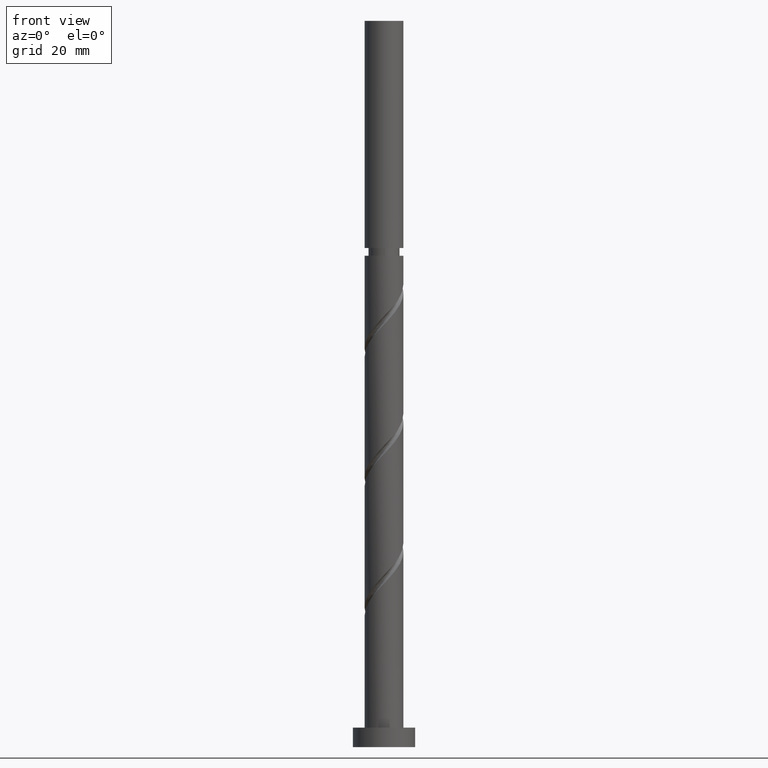
[diagram: clean part render]
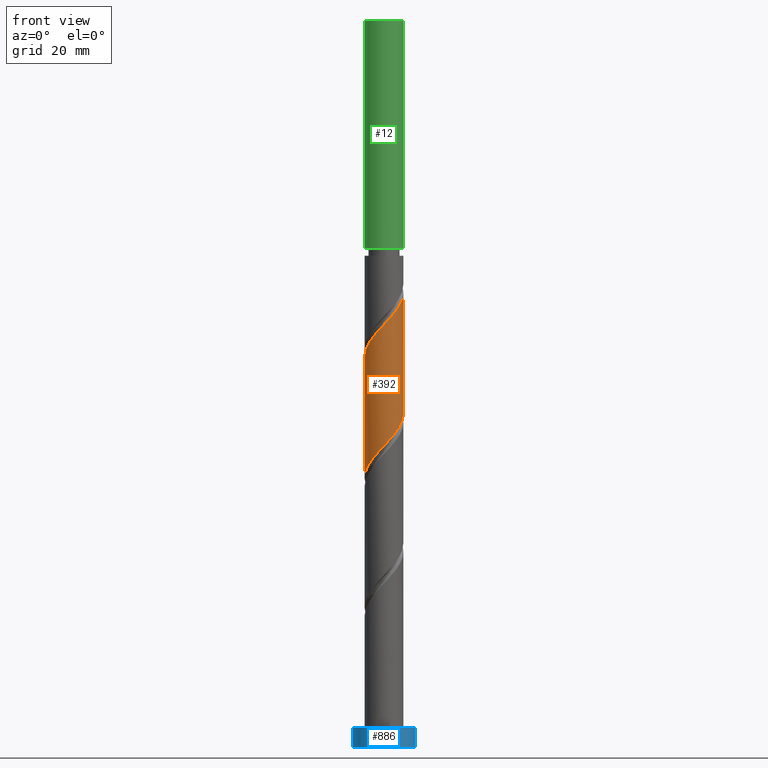
[diagram: same view with three faces highlighted in distinct colors, each labeled with its STEP entity id]
A machine part, front view with three faces highlighted in distinct colors.
Their STEP definitions:

[orange] entity #392 — the highlighted cylindrical surface (edge-blend (fillet) strip) has radius 5 mm, axis along (-0, -0, -1).
#2 = ORIENTED_EDGE ( 'NONE', *, *, #1594, .F. ) ;
#22 = CARTESIAN_POINT ( 'NONE',  ( -4.999999999999998224, 5.787114579681064564E-15, 69.26158959534315329 ) ) ;
#31 = DIRECTION ( 'NONE',  ( -0.000000000000000000, -0.000000000000000000, -1.000000000000000000 ) ) ;
#41 = CARTESIAN_POINT ( 'NONE',  ( 4.769007418836825885, -1.640084675284864346, 84.17024516235528608 ) ) ;
#55 = CARTESIAN_POINT ( 'NONE',  ( -5.000000000000007994, -1.420609522143917172E-15, 100.4677896182563188 ) ) ;
#59 = CARTESIAN_POINT ( 'NONE',  ( -4.741018197097059073, -1.588315603019292865, 70.97580071791085743 ) ) ;
#73 = CARTESIAN_POINT ( 'NONE',  ( -0.3071292586678989744, -4.990558247177381723, 108.4758007179108432 ) ) ;
#92 = CARTESIAN_POINT ( 'NONE',  ( -4.182022282074166597, -2.818510091388756411, 103.6146896067997432 ) ) ;
#164 = CARTESIAN_POINT ( 'NONE',  ( 4.475514850455490468, -2.229297383336810157, 83.47580071791084322 ) ) ;
#216 = CARTESIAN_POINT ( 'NONE',  ( 3.311684396980709266, -3.746030759990445880, 112.6424673845774720 ) ) ;
#240 = CYLINDRICAL_SURFACE ( 'NONE', #789, 5.000000000000000000 ) ;
#285 =( BOUNDED_CURVE ( )  B_SPLINE_CURVE ( 2, ( #463, #1269, #869, #41, #164, #832, #1253, #1240, #579, #438, #446, #1643, #432, #1499, #298, #1246, #852, #1392, #1155, #901, #1672, #1436, #59, #357, #513, #1709, #1418 ),
 .UNSPECIFIED., .F., .T. ) 
 B_SPLINE_CURVE_WITH_KNOTS ( ( 3, 2, 2, 2, 2, 2, 2, 2, 2, 2, 2, 2, 2, 3 ),
 ( 0.5545317669814462391, 0.5625000000000000000, 0.5729166666666666297, 0.5833333333333333703, 0.5937500000000000000, 0.6041666666666666297, 0.6145833333333333703, 0.6250000000000000000, 0.6354166666666666297, 0.6458333333333333703, 0.6562500000000000000, 0.6666666666666666297, 0.6770833333333333703, 0.6795317669814463502 ),
 .UNSPECIFIED. ) 
 CURVE ( )  GEOMETRIC_REPRESENTATION_ITEM ( )  RATIONAL_B_SPLINE_CURVE ( ( 0.9062941362546301782, 0.9031415850403343715, 0.9090909090909098378, 0.9013135103398283166, 0.9090909090909098378, 0.9013135103398283166, 0.9090909090909098378, 0.9013135103398283166, 0.9090909090909098378, 0.9013135103398283166, 0.9090909090909098378, 0.9013135103398283166, 0.9090909090909098378, 0.9013135103398283166, 0.9090909090909098378, 0.9013135103398283166, 0.9090909090909098378, 0.9013135103398283166, 0.9090909090909098378, 0.9013135103398283166, 0.9090909090909098378, 0.9013135103398283166, 0.9090909090909098378, 0.9013135103398283166, 0.9090909090909098378, 0.9072628343904035608, 0.9062941362546301782 ) ) 
 REPRESENTATION_ITEM ( '' )  );
#298 = CARTESIAN_POINT ( 'NONE',  ( -0.9949874371066216305, -4.899999999999997691, 76.53135627346641456 ) ) ;
#340 = VERTEX_POINT ( 'NONE', #55 ) ;
#346 = CARTESIAN_POINT ( 'NONE',  ( -5.000000000000007994, -1.420609522143917172E-15, 100.4677896182563188 ) ) ;
#354 = CARTESIAN_POINT ( 'NONE',  ( 1.640084675284861682, -4.769007418836840984, 110.5591340512441860 ) ) ;
#357 = CARTESIAN_POINT ( 'NONE',  ( -4.950123913191580627, -0.9641487162641722009, 70.28135627346640035 ) ) ;
#361 = CARTESIAN_POINT ( 'NONE',  ( 4.990558247177382611, -0.3071292586679017500, 116.8091340512441434 ) ) ;
#381 = CARTESIAN_POINT ( 'NONE',  ( -2.212482489774421079, -4.531912481002546400, 106.3924673845775430 ) ) ;
#392 = ADVANCED_FACE ( 'NONE', ( #1575 ), #240, .T. ) ;
#432 = CARTESIAN_POINT ( 'NONE',  ( 0.3071292586678939784, -4.990558247177372841, 77.92024516235530029 ) ) ;
#438 = CARTESIAN_POINT ( 'NONE',  ( 2.212482489774412642, -4.531912481002538406, 80.00357849568861468 ) ) ;
#446 = CARTESIAN_POINT ( 'NONE',  ( 1.588315603019292865, -4.741018197097059073, 79.30913405124418603 ) ) ;
#459 = EDGE_LOOP ( 'NONE', ( #1373, #1745, #1122, #2 ) ) ;
#463 = CARTESIAN_POINT ( 'NONE',  ( 4.999999999999999112, 6.968463550727070010E-15, 85.92825626200981048 ) ) ;
#496 = CARTESIAN_POINT ( 'NONE',  ( 4.950123913191589509, -0.9641487162641798614, 116.1146896067997432 ) ) ;
#513 = CARTESIAN_POINT ( 'NONE',  ( -4.990558247177372841, -0.3071292586678953662, 69.58691182902198591 ) ) ;
#579 = CARTESIAN_POINT ( 'NONE',  ( 2.761260863840563573, -4.168385591787598266, 80.69802294013305755 ) ) ;
#621 = CARTESIAN_POINT ( 'NONE',  ( -1.588315603019300193, -4.741018197097065290, 107.0869118290219433 ) ) ;
#625 = EDGE_CURVE ( 'NONE', #1424, #1001, #1490, .T. ) ;
#630 = CARTESIAN_POINT ( 'NONE',  ( 3.804858702572662121, -3.310039237906727827, 113.3369118290219717 ) ) ;
#640 = CARTESIAN_POINT ( 'NONE',  ( 5.000000000000009770, -1.869223055452522833E-15, 117.1344562849230044 ) ) ;
#732 = VECTOR ( 'NONE', #31, 1000.000000000000000 ) ;
#752 = CARTESIAN_POINT ( 'NONE',  ( -3.310039237906727827, -3.804858702572662121, 105.0035784956886289 ) ) ;
#762 = CARTESIAN_POINT ( 'NONE',  ( 4.168385591787601818, -2.761260863840574231, 114.0313562734663719 ) ) ;
#789 = AXIS2_PLACEMENT_3D ( 'NONE', #1311, #1061, #1703 ) ;
#795 = CARTESIAN_POINT ( 'NONE',  ( 5.000000000000000000, 6.123233995736766282E-16, 187.0000000000000000 ) ) ;
#832 = CARTESIAN_POINT ( 'NONE',  ( 4.182022282074153274, -2.818510091388755079, 82.78135627346638614 ) ) ;
#852 = CARTESIAN_POINT ( 'NONE',  ( -2.229297383336808380, -4.475514850455492244, 75.14246738457750041 ) ) ;
#869 = CARTESIAN_POINT ( 'NONE',  ( 4.899999999999997691, -0.9949874371066218526, 84.86468960679972895 ) ) ;
#893 = CARTESIAN_POINT ( 'NONE',  ( 2.229297383336807936, -4.475514850455503790, 111.2535784956886431 ) ) ;
#901 = CARTESIAN_POINT ( 'NONE',  ( -3.804858702572657680, -3.310039237906718057, 73.05913405124417181 ) ) ;
#907 = CARTESIAN_POINT ( 'NONE',  ( 5.000000000000008882, -0.1537097582883641400, 116.9712925968947843 ) ) ;
#1001 = VERTEX_POINT ( 'NONE', #1526 ) ;
#1036 = CARTESIAN_POINT ( 'NONE',  ( -2.761260863840572899, -4.168385591787603595, 105.6980229401330575 ) ) ;
#1048 = CARTESIAN_POINT ( 'NONE',  ( -3.746030759990445436, -3.311684396980708822, 104.3091340512441576 ) ) ;
#1058 = CARTESIAN_POINT ( 'NONE',  ( -5.000000000000009770, -0.5025189076296000534, 101.0012159874456046 ) ) ;
#1061 = DIRECTION ( 'NONE',  ( -0.000000000000000000, -0.000000000000000000, -1.000000000000000000 ) ) ;
#1122 = ORIENTED_EDGE ( 'NONE', *, *, #1291, .T. ) ;
#1155 = CARTESIAN_POINT ( 'NONE',  ( -3.311684396980706158, -3.746030759990437442, 73.75357849568862889 ) ) ;
#1165 = CARTESIAN_POINT ( 'NONE',  ( 0.3498901989283792480, -5.030992581163177491, 109.1702451623553287 ) ) ;
#1172 = EDGE_CURVE ( 'NONE', #340, #1424, #1564, .T. ) ;
#1173 = CARTESIAN_POINT ( 'NONE',  ( 4.741018197097066178, -1.588315603019300415, 115.4202451623552577 ) ) ;
#1240 = CARTESIAN_POINT ( 'NONE',  ( 3.310039237906717613, -3.804858702572657680, 81.39246738457748620 ) ) ;
#1246 = CARTESIAN_POINT ( 'NONE',  ( -1.640084675284862126, -4.769007418836828549, 75.83691182902192907 ) ) ;
#1253 = CARTESIAN_POINT ( 'NONE',  ( 3.746030759990437442, -3.311684396980706602, 82.08691182902195749 ) ) ;
#1269 = CARTESIAN_POINT ( 'NONE',  ( 4.999999999999999112, -0.5025189076296037172, 85.39482989282055314 ) ) ;
#1288 = CARTESIAN_POINT ( 'NONE',  ( -0.9641487162641770858, -4.950123913191589509, 107.7813562734664288 ) ) ;
#1291 = EDGE_CURVE ( 'NONE', #340, #1557, #1487, .T. ) ;
#1299 = CARTESIAN_POINT ( 'NONE',  ( 4.531912481002545512, -2.212482489774421079, 114.7258007179108432 ) ) ;
#1309 = CARTESIAN_POINT ( 'NONE',  ( -4.475514850455501126, -2.229297383336809268, 102.9202451623552861 ) ) ;
#1311 = CARTESIAN_POINT ( 'NONE',  ( 0.000000000000000000, 0.000000000000000000, 187.0000000000000000 ) ) ;
#1353 = CARTESIAN_POINT ( 'NONE',  ( -5.000000000000000000, 0.000000000000000000, 187.0000000000000000 ) ) ;
#1373 = ORIENTED_EDGE ( 'NONE', *, *, #625, .F. ) ;
#1377 = CARTESIAN_POINT ( 'NONE',  ( 5.000000000000009770, -1.869223055452522833E-15, 117.1344562849230044 ) ) ;
#1392 = CARTESIAN_POINT ( 'NONE',  ( -2.818510091388753303, -4.182022282074155939, 74.44802294013305755 ) ) ;
#1418 = CARTESIAN_POINT ( 'NONE',  ( -4.999999999999998224, 5.787114579681064564E-15, 69.26158959534315329 ) ) ;
#1421 = CARTESIAN_POINT ( 'NONE',  ( -4.769007418836840984, -1.640084675284861904, 102.2258007179108432 ) ) ;
#1424 = VERTEX_POINT ( 'NONE', #1377 ) ;
#1428 = CARTESIAN_POINT ( 'NONE',  ( 2.818510091388755079, -4.182022282074167485, 111.9480229401330860 ) ) ;
#1436 = CARTESIAN_POINT ( 'NONE',  ( -4.531912481002538406, -2.212482489774412642, 71.67024516235527187 ) ) ;
#1487 = LINE ( 'NONE', #1353, #1539 ) ;
#1490 = LINE ( 'NONE', #795, #732 ) ;
#1499 = CARTESIAN_POINT ( 'NONE',  ( -0.3498901989283830782, -5.030992581163167721, 77.22580071791085743 ) ) ;
#1526 = CARTESIAN_POINT ( 'NONE',  ( 4.999999999999999112, 6.968463550727070010E-15, 85.92825626200981048 ) ) ;
#1539 = VECTOR ( 'NONE', #1750, 1000.000000000000000 ) ;
#1557 = VERTEX_POINT ( 'NONE', #22 ) ;
#1564 =( BOUNDED_CURVE ( )  B_SPLINE_CURVE ( 2, ( #346, #1058, #1565, #1421, #1309, #92, #1048, #752, #1036, #381, #621, #1288, #73, #1165, #1686, #354, #893, #1428, #216, #630, #762, #1299, #1173, #496, #361, #907, #640 ),
 .UNSPECIFIED., .F., .T. ) 
 B_SPLINE_CURVE_WITH_KNOTS ( ( 3, 2, 2, 2, 2, 2, 2, 2, 2, 2, 2, 2, 2, 3 ),
 ( 0.5545317669814461281, 0.5625000000000000000, 0.5729166666666667407, 0.5833333333333332593, 0.5937500000000000000, 0.6041666666666667407, 0.6145833333333332593, 0.6250000000000000000, 0.6354166666666667407, 0.6458333333333332593, 0.6562500000000000000, 0.6666666666666667407, 0.6770833333333332593, 0.6795317669814463502 ),
 .UNSPECIFIED. ) 
 CURVE ( )  GEOMETRIC_REPRESENTATION_ITEM ( )  RATIONAL_B_SPLINE_CURVE ( ( 0.9062941362546388380, 0.9031415850403428092, 0.9090909090909183865, 0.9013135103398366432, 0.9090909090909183865, 0.9013135103398366432, 0.9090909090909183865, 0.9013135103398366432, 0.9090909090909183865, 0.9013135103398366432, 0.9090909090909183865, 0.9013135103398366432, 0.9090909090909183865, 0.9013135103398366432, 0.9090909090909183865, 0.9013135103398366432, 0.9090909090909183865, 0.9013135103398366432, 0.9090909090909183865, 0.9013135103398366432, 0.9090909090909183865, 0.9013135103398366432, 0.9090909090909183865, 0.9013135103398366432, 0.9090909090909183865, 0.9072628343904121095, 0.9062941362546387269 ) ) 
 REPRESENTATION_ITEM ( '' )  );
#1565 = CARTESIAN_POINT ( 'NONE',  ( -4.900000000000008349, -0.9949874371066216305, 101.5313562734664004 ) ) ;
#1575 = FACE_OUTER_BOUND ( 'NONE', #459, .T. ) ;
#1594 = EDGE_CURVE ( 'NONE', #1001, #1557, #285, .T. ) ;
#1643 = CARTESIAN_POINT ( 'NONE',  ( 0.9641487162641707576, -4.950123913191579739, 78.61468960679975737 ) ) ;
#1672 = CARTESIAN_POINT ( 'NONE',  ( -4.168385591787596489, -2.761260863840565793, 72.36468960679972895 ) ) ;
#1686 = CARTESIAN_POINT ( 'NONE',  ( 0.9949874371066211864, -4.900000000000008349, 109.8646896067997289 ) ) ;
#1703 = DIRECTION ( 'NONE',  ( -1.000000000000000000, 0.000000000000000000, 0.000000000000000000 ) ) ;
#1709 = CARTESIAN_POINT ( 'NONE',  ( -4.999999999999998224, -0.1537097582883631686, 69.42475328337130236 ) ) ;
#1745 = ORIENTED_EDGE ( 'NONE', *, *, #1172, .F. ) ;
#1750 = DIRECTION ( 'NONE',  ( -0.000000000000000000, -0.000000000000000000, -1.000000000000000000 ) ) ;

[blue] entity #886 — the highlighted cylindrical surface (edge-blend (fillet) strip) has radius 8 mm, axis along (-0, -0, -1).
#219 = CIRCLE ( 'NONE', #1513, 8.000000000000000000 ) ;
#220 = AXIS2_PLACEMENT_3D ( 'NONE', #1282, #1677, #477 ) ;
#413 = EDGE_CURVE ( 'NONE', #1601, #1232, #219, .T. ) ;
#447 = AXIS2_PLACEMENT_3D ( 'NONE', #955, #813, #686 ) ;
#461 = EDGE_CURVE ( 'NONE', #1727, #985, #815, .T. ) ;
#477 = DIRECTION ( 'NONE',  ( 1.000000000000000000, 0.000000000000000000, 0.000000000000000000 ) ) ;
#527 = EDGE_CURVE ( 'NONE', #1601, #1727, #1493, .T. ) ;
#567 = ORIENTED_EDGE ( 'NONE', *, *, #527, .T. ) ;
#660 = ORIENTED_EDGE ( 'NONE', *, *, #413, .F. ) ;
#686 = DIRECTION ( 'NONE',  ( -1.000000000000000000, 0.000000000000000000, 0.000000000000000000 ) ) ;
#745 = DIRECTION ( 'NONE',  ( 1.000000000000000000, 0.000000000000000000, 0.000000000000000000 ) ) ;
#749 = DIRECTION ( 'NONE',  ( -0.000000000000000000, -0.000000000000000000, -1.000000000000000000 ) ) ;
#782 = CARTESIAN_POINT ( 'NONE',  ( 0.000000000000000000, 0.000000000000000000, 5.000000000000000000 ) ) ;
#813 = DIRECTION ( 'NONE',  ( -0.000000000000000000, -0.000000000000000000, -1.000000000000000000 ) ) ;
#815 = CIRCLE ( 'NONE', #220, 8.000000000000000000 ) ;
#886 = ADVANCED_FACE ( 'NONE', ( #1559 ), #1092, .T. ) ;
#955 = CARTESIAN_POINT ( 'NONE',  ( 0.000000000000000000, 0.000000000000000000, 5.000000000000000000 ) ) ;
#960 = CARTESIAN_POINT ( 'NONE',  ( 8.000000000000000000, 9.797174393178825657E-16, 5.000000000000000000 ) ) ;
#985 = VERTEX_POINT ( 'NONE', #1147 ) ;
#1012 = CARTESIAN_POINT ( 'NONE',  ( -8.000000000000000000, 0.000000000000000000, 5.000000000000000000 ) ) ;
#1023 = VECTOR ( 'NONE', #749, 1000.000000000000000 ) ;
#1024 = CARTESIAN_POINT ( 'NONE',  ( -8.000000000000000000, 0.000000000000000000, 5.000000000000000000 ) ) ;
#1092 = CYLINDRICAL_SURFACE ( 'NONE', #447, 8.000000000000000000 ) ;
#1147 = CARTESIAN_POINT ( 'NONE',  ( 8.000000000000000000, 9.797174393178825657E-16, 0.000000000000000000 ) ) ;
#1176 = ORIENTED_EDGE ( 'NONE', *, *, #461, .T. ) ;
#1181 = LINE ( 'NONE', #1482, #1220 ) ;
#1208 = EDGE_CURVE ( 'NONE', #1232, #985, #1181, .T. ) ;
#1220 = VECTOR ( 'NONE', #1592, 1000.000000000000000 ) ;
#1232 = VERTEX_POINT ( 'NONE', #960 ) ;
#1282 = CARTESIAN_POINT ( 'NONE',  ( 0.000000000000000000, 0.000000000000000000, 0.000000000000000000 ) ) ;
#1330 = ORIENTED_EDGE ( 'NONE', *, *, #1208, .F. ) ;
#1414 = DIRECTION ( 'NONE',  ( 0.000000000000000000, 0.000000000000000000, 1.000000000000000000 ) ) ;
#1482 = CARTESIAN_POINT ( 'NONE',  ( 8.000000000000000000, 9.797174393178825657E-16, 5.000000000000000000 ) ) ;
#1493 = LINE ( 'NONE', #1012, #1023 ) ;
#1513 = AXIS2_PLACEMENT_3D ( 'NONE', #782, #1414, #745 ) ;
#1549 = EDGE_LOOP ( 'NONE', ( #1330, #660, #567, #1176 ) ) ;
#1559 = FACE_OUTER_BOUND ( 'NONE', #1549, .T. ) ;
#1560 = CARTESIAN_POINT ( 'NONE',  ( -8.000000000000000000, 0.000000000000000000, 0.000000000000000000 ) ) ;
#1592 = DIRECTION ( 'NONE',  ( -0.000000000000000000, -0.000000000000000000, -1.000000000000000000 ) ) ;
#1601 = VERTEX_POINT ( 'NONE', #1024 ) ;
#1677 = DIRECTION ( 'NONE',  ( 0.000000000000000000, 0.000000000000000000, 1.000000000000000000 ) ) ;
#1727 = VERTEX_POINT ( 'NONE', #1560 ) ;

[green] entity #12 — the highlighted cylindrical surface (edge-blend (fillet) strip) has radius 5 mm, axis along (-0, -0, -1).
#11 = DIRECTION ( 'NONE',  ( -0.000000000000000000, -0.000000000000000000, -1.000000000000000000 ) ) ;
#12 = ADVANCED_FACE ( 'NONE', ( #1009 ), #313, .T. ) ;
#13 = CARTESIAN_POINT ( 'NONE',  ( 0.000000000000000000, 0.000000000000000000, 187.0000000000000000 ) ) ;
#16 = CIRCLE ( 'NONE', #1648, 5.000000000000000000 ) ;
#21 = DIRECTION ( 'NONE',  ( 0.000000000000000000, 0.000000000000000000, 1.000000000000000000 ) ) ;
#64 = ORIENTED_EDGE ( 'NONE', *, *, #723, .F. ) ;
#195 = CARTESIAN_POINT ( 'NONE',  ( -4.999999999999997335, 0.000000000000000000, 128.5313562734664004 ) ) ;
#213 = CARTESIAN_POINT ( 'NONE',  ( 5.000000000000000000, 6.123233995736766282E-16, 187.0000000000000000 ) ) ;
#231 = CARTESIAN_POINT ( 'NONE',  ( -5.000000000000000000, 0.000000000000000000, 187.0000000000000000 ) ) ;
#276 = VECTOR ( 'NONE', #757, 1000.000000000000000 ) ;
#283 = CARTESIAN_POINT ( 'NONE',  ( 0.000000000000000000, 0.000000000000000000, 128.5313562734664004 ) ) ;
#313 = CYLINDRICAL_SURFACE ( 'NONE', #601, 5.000000000000000000 ) ;
#349 = VERTEX_POINT ( 'NONE', #231 ) ;
#364 = CIRCLE ( 'NONE', #761, 4.999999999999997335 ) ;
#396 = VERTEX_POINT ( 'NONE', #1447 ) ;
#420 = VERTEX_POINT ( 'NONE', #195 ) ;
#431 = DIRECTION ( 'NONE',  ( 1.000000000000000000, 0.000000000000000000, 0.000000000000000000 ) ) ;
#442 = ORIENTED_EDGE ( 'NONE', *, *, #594, .T. ) ;
#489 = DIRECTION ( 'NONE',  ( -0.000000000000000000, -0.000000000000000000, -1.000000000000000000 ) ) ;
#594 = EDGE_CURVE ( 'NONE', #349, #420, #1678, .T. ) ;
#601 = AXIS2_PLACEMENT_3D ( 'NONE', #1406, #711, #1133 ) ;
#711 = DIRECTION ( 'NONE',  ( -0.000000000000000000, -0.000000000000000000, -1.000000000000000000 ) ) ;
#723 = EDGE_CURVE ( 'NONE', #349, #1356, #16, .T. ) ;
#757 = DIRECTION ( 'NONE',  ( -0.000000000000000000, -0.000000000000000000, -1.000000000000000000 ) ) ;
#761 = AXIS2_PLACEMENT_3D ( 'NONE', #283, #11, #1658 ) ;
#882 = EDGE_CURVE ( 'NONE', #1356, #396, #1033, .T. ) ;
#885 = CARTESIAN_POINT ( 'NONE',  ( -5.000000000000000000, 0.000000000000000000, 187.0000000000000000 ) ) ;
#913 = EDGE_CURVE ( 'NONE', #396, #420, #364, .T. ) ;
#1009 = FACE_OUTER_BOUND ( 'NONE', #1153, .T. ) ;
#1033 = LINE ( 'NONE', #213, #276 ) ;
#1133 = DIRECTION ( 'NONE',  ( -1.000000000000000000, 0.000000000000000000, 0.000000000000000000 ) ) ;
#1153 = EDGE_LOOP ( 'NONE', ( #1285, #64, #442, #1461 ) ) ;
#1285 = ORIENTED_EDGE ( 'NONE', *, *, #882, .F. ) ;
#1356 = VERTEX_POINT ( 'NONE', #1738 ) ;
#1406 = CARTESIAN_POINT ( 'NONE',  ( 0.000000000000000000, 0.000000000000000000, 187.0000000000000000 ) ) ;
#1447 = CARTESIAN_POINT ( 'NONE',  ( 4.999999999999997335, 6.123233995736764310E-16, 128.5313562734664004 ) ) ;
#1461 = ORIENTED_EDGE ( 'NONE', *, *, #913, .F. ) ;
#1620 = VECTOR ( 'NONE', #489, 1000.000000000000000 ) ;
#1648 = AXIS2_PLACEMENT_3D ( 'NONE', #13, #21, #431 ) ;
#1658 = DIRECTION ( 'NONE',  ( -1.000000000000000000, 0.000000000000000000, 0.000000000000000000 ) ) ;
#1678 = LINE ( 'NONE', #885, #1620 ) ;
#1738 = CARTESIAN_POINT ( 'NONE',  ( 5.000000000000000000, 6.123233995736766282E-16, 187.0000000000000000 ) ) ;